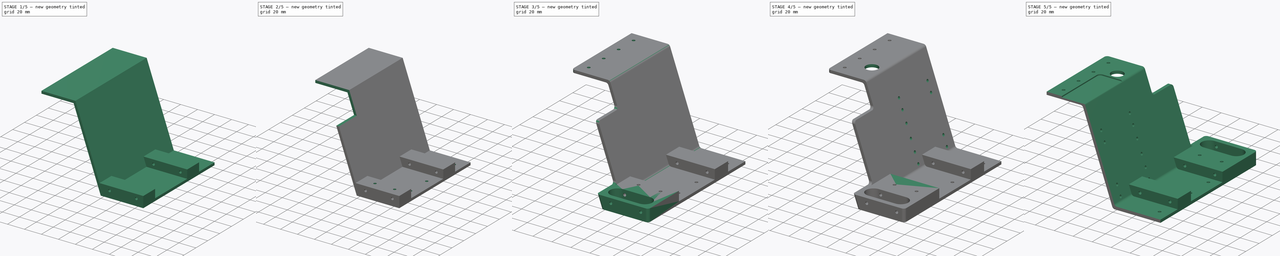
[diagram: build sequence overview — one tinted view per stage of 5, left to right]
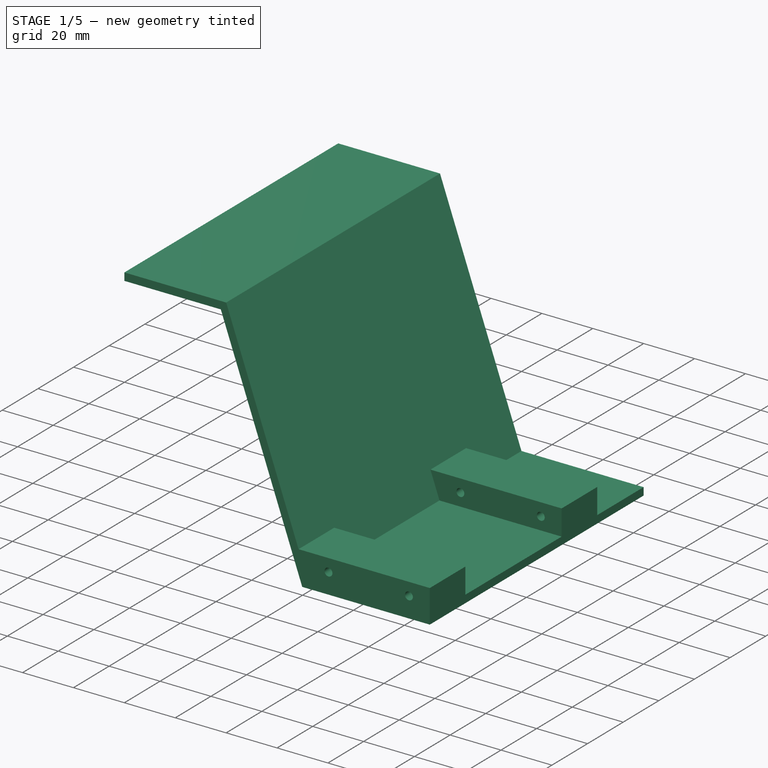
[diagram: stage 1 of 5 — iso view after this stage's code; geometry added in this stage tinted green]
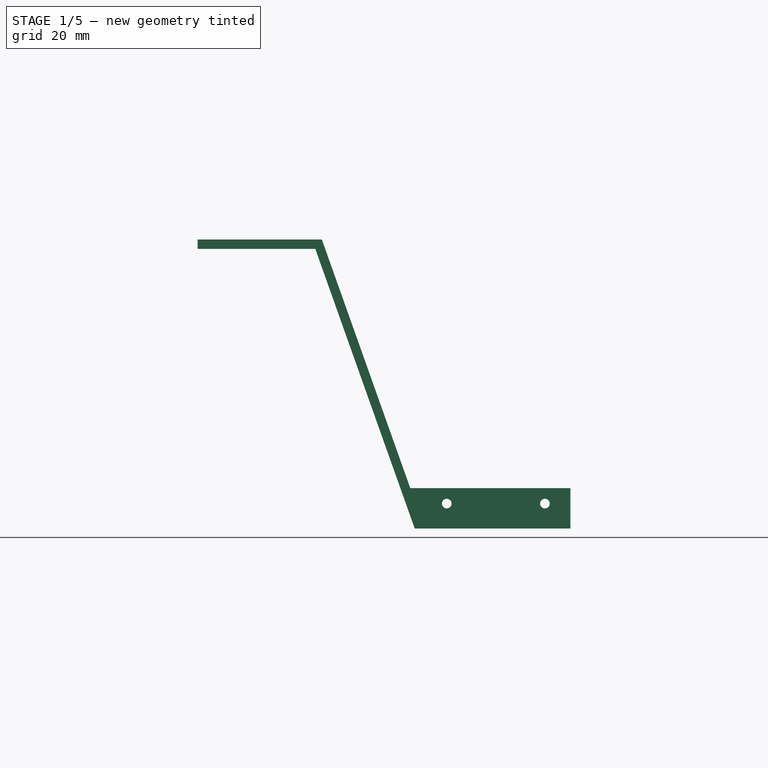
[diagram: stage 1 of 5 — front view after this stage's code; geometry added in this stage tinted green]
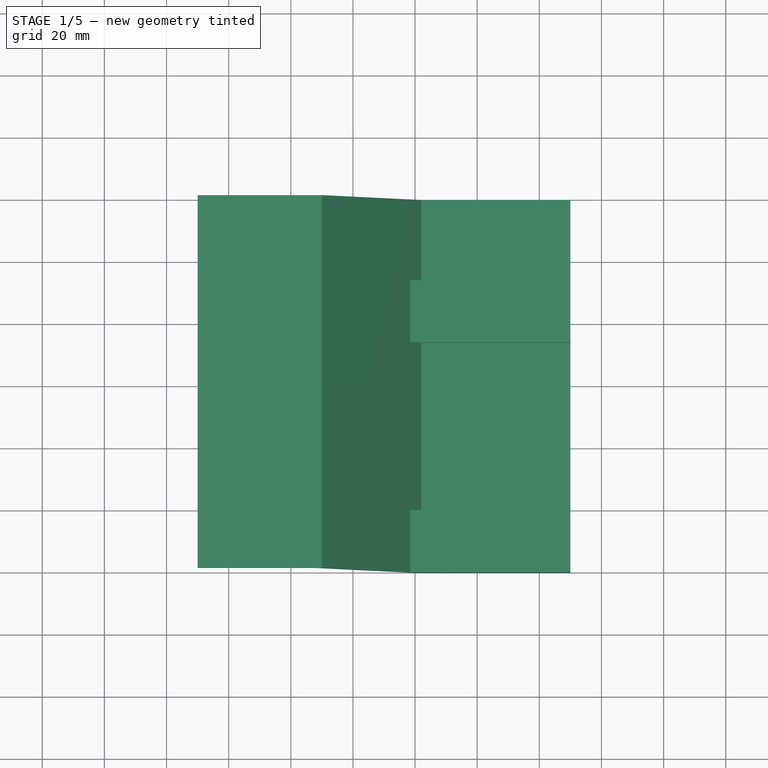
[diagram: stage 1 of 5 — top view after this stage's code; geometry added in this stage tinted green]
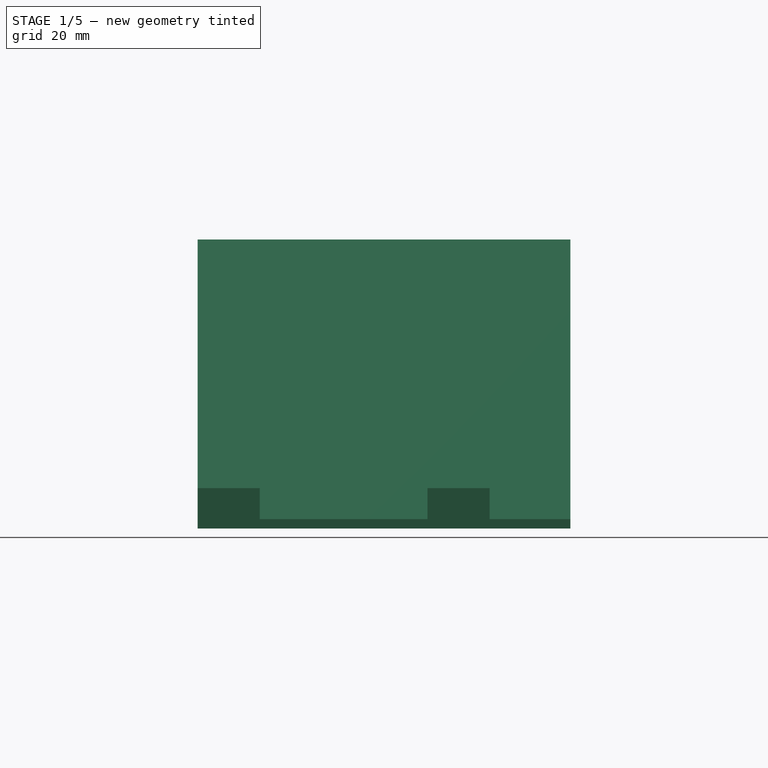
[diagram: stage 1 of 5 — right view after this stage's code; geometry added in this stage tinted green]
FCSTD DOCUMENT  (FreeCAD 1.1R44874 (Git))
Label: carter-v2
License: All rights reserved
LicenseURL: https://en.wikipedia.org/wiki/All_rights_reserved
objects: Sketcher::SketchObject×11, PartDesign::Pocket×8, PartDesign::Pad×4, PartDesign::Fillet×2, PartDesign::LinearPattern×1, PartDesign::Plane×1, PartDesign::Body×1, Part::Mirroring×1, App::Point×1
note: 69 computed .brp shape members not serialized (recipe doc carries the construction recipe); baked Part::Feature solids carry a one-line shape summary decoded from their .brp

FEATURE [Sketcher::SketchObject] Sketch001
  ArcFitTolerance = 1e-06
  AttachmentSupport = -> [XZ_Plane001]
  ExternalTypes = [0]
  FullyConstrained = true
  MakeInternals = false
  MapMode = 5
  Placement = pos=(0,0,0) rot=(1,0,0;1.5708rad)
  _ExternalGeoVersion = 0
  sketch-geometry (12):
    g0: LineSegment [constr] StartX=50 StartY=-45 StartZ=0 EndX=-50 EndY=-45 EndZ=0
    g1: LineSegment [constr] StartX=-50 StartY=-45 StartZ=0 EndX=-50 EndY=45 EndZ=0
    g2: LineSegment StartX=-70 StartY=45 StartZ=0 EndX=-32.1173 EndY=45 EndZ=0
    g3: LineSegment StartX=-32.1173 StartY=45 StartZ=0 EndX=-0.117321 EndY=-45 EndZ=0
    g4: LineSegment StartX=-0.117321 StartY=-45 StartZ=0 EndX=50 EndY=-45 EndZ=0
    g5: LineSegment [constr] StartX=-50 StartY=45 StartZ=0 EndX=-70 EndY=45 EndZ=0
    g6: LineSegment StartX=-70 StartY=45 StartZ=0 EndX=-70 EndY=48 EndZ=0
    g7: LineSegment StartX=-70 StartY=48 StartZ=0 EndX=-30 EndY=48 EndZ=0
    g8: LineSegment StartX=-30 StartY=48 StartZ=0 EndX=2 EndY=-42 EndZ=0
    g9: LineSegment StartX=2 StartY=-42 StartZ=0 EndX=50 EndY=-42 EndZ=0
    g10: LineSegment StartX=50 StartY=-42 StartZ=0 EndX=50 EndY=-45 EndZ=0
    g11: LineSegment [constr] StartX=-16.1173 StartY=2e-15 StartZ=0 EndX=-13.2907 EndY=1.00503 EndZ=0
  constraints (33):
    c: Coincident(g1,g0)
    c: Symmetric(g1,g0,g-1)
    c: Symmetric(g0,g0,g-2)
    c: Distance(g0,g0) = 100
    c: Distance(g1,g1) = 90
    c: Horizontal(g2)
    c: Coincident(g3,g2)
    c: Coincident(g4,g3)
    c: Horizontal(g4)
    c: Coincident(g5,g1)
    c: Horizontal(g5)
    c: Distance(g5,g5) = 20
    c: Coincident(g2,g5)
    c: Coincident(g4,g0)
    c: Coincident(g2,g6)
    c: Coincident(g6,g7)
    c: Horizontal(g7)
    c: Coincident(g7,g8)
    c: Coincident(g8,g9)
    c: Horizontal(g9)
    c: Coincident(g9,g10)
    c: Coincident(g10,g0)
    c: Vertical(g10)
    c: Vertical(g6)
    c: Parallel(g3,g8)
    c: Symmetric(g3,g2,g11)
    c: PointOnObject(g11,g3)
    c: PointOnObject(g11,g8)
    c: Equal(g6,g11)
    c: Equal(g11,g10)
    c: Distance(g10,g10) = 3
    c: Distance(g7,g7) = 40
    c: Distance(g9,g9) = 48
FEATURE [PartDesign::Pad] Pad
  Direction = (0,-1,2e-16)
  Length = 120
  Length2 = 10
  Placement = pos=(0,0,0) rot=(1,0,0;1.5708rad)
  Profile = -> Sketch001
  ReferenceAxis = -> Sketch001 [N_Axis]
  Refine = true
  SideType = 0
  Suppressed = false
  Type = 0
  Type2 = 0
FEATURE [Sketcher::SketchObject] Sketch
  ArcFitTolerance = 1e-06
  AttachmentSupport = -> [Pad]
  ExternalGeometry = -> [Pad]
  ExternalTypes = [0]
  FullyConstrained = true
  MakeInternals = false
  MapMode = 5
  Placement = pos=(0,-120,0) rot=(1,0,0;1.5708rad)
  _ExternalGeoVersion = 0
  sketch-geometry (9):
    g0: LineSegment StartX=50 StartY=-45 StartZ=0 EndX=50 EndY=-32 EndZ=0
    g1: LineSegment StartX=50 StartY=-32 StartZ=0 EndX=-4.73954 EndY=-32 EndZ=0
    g2: LineSegment StartX=-4.73954 StartY=-32 StartZ=0 EndX=-0.117321 EndY=-45 EndZ=0
    g3: LineSegment StartX=-0.117321 StartY=-45 StartZ=0 EndX=50 EndY=-45 EndZ=0
    g4: LineSegment [constr] StartX=26 StartY=-42 StartZ=0 EndX=26 EndY=-32 EndZ=0
    g5: LineSegment [constr] StartX=10.2 StartY=-37 StartZ=0 EndX=41.8 EndY=-37 EndZ=0
    g6: Circle CenterX=10.2 CenterY=-37 CenterZ=0 NormalX=0 NormalY=0 NormalZ=1 AngleXU=0 Radius=1.55
    g7: Circle CenterX=41.8 CenterY=-37 CenterZ=0 NormalX=0 NormalY=0 NormalZ=1 AngleXU=0 Radius=1.55
    g8: Circle [constr] CenterX=41.8 CenterY=-37 CenterZ=0 NormalX=0 NormalY=0 NormalZ=1 AngleXU=0 Radius=5
  constraints (23):
    c: Coincident(g0,g1)
    c: Coincident(g1,g2)
    c: Coincident(g2,g3)
    c: Coincident(g3,g0)
    c: Vertical(g0)
    c: Horizontal(g1)
    c: Horizontal(g3)
    c: Coincident(g0,g-4)
    c: PointOnObject(g2,g-3)
    c: PointOnObject(g1,g-3)
    c: Symmetric(g-5,g-5,g4)
    c: PointOnObject(g4,g1)
    c: Symmetric(g4,g4,g5)
    c: Coincident(g6,g5)
    c: Coincident(g7,g5)
    c: Equal(g6,g7)
    c: Diameter(g6) = 3.1
    c: Distance(g5,g5) = 31.6
    c: Symmetric(g5,g5,g4)
    c: PointOnObject(g4,g-5)
    c: Coincident(g8,g5)
    c: Diameter(g8) = 10
    c: Tangent(g1,g8)
FEATURE [PartDesign::Pad] Pad001
  BaseFeature = -> Pad
  Direction = (0,-1,2e-16)
  Length = 20
  Length2 = 20
  Placement = pos=(0,0,0) rot=(1,0,0;1.5708rad)
  Profile = -> Sketch
  ReferenceAxis = -> Sketch [N_Axis]
  Refine = true
  Reversed = true
  SideType = 0
  Suppressed = false
  Type = 0
  Type2 = 0
FEATURE [PartDesign::LinearPattern] LinearPattern
  BaseFeature = -> Pad001
  Direction = -> Y_Axis001
  Length = 74
  Length2 = 100
  Mode = 0
  Mode2 = 0
  Occurrences = 2
  Occurrences2 = 1
  Offset = 74
  Offset2 = 10
  Originals = -> [Pad001]
  Placement = pos=(0,0,0) rot=(1,0,0;1.5708rad)
  Refine = true
  Reversed2 = false
  SpacingPattern = [0]
  SpacingPattern2 = [0]
  Spacings = [-1]
  Suppressed = false
  TransformMode = 0
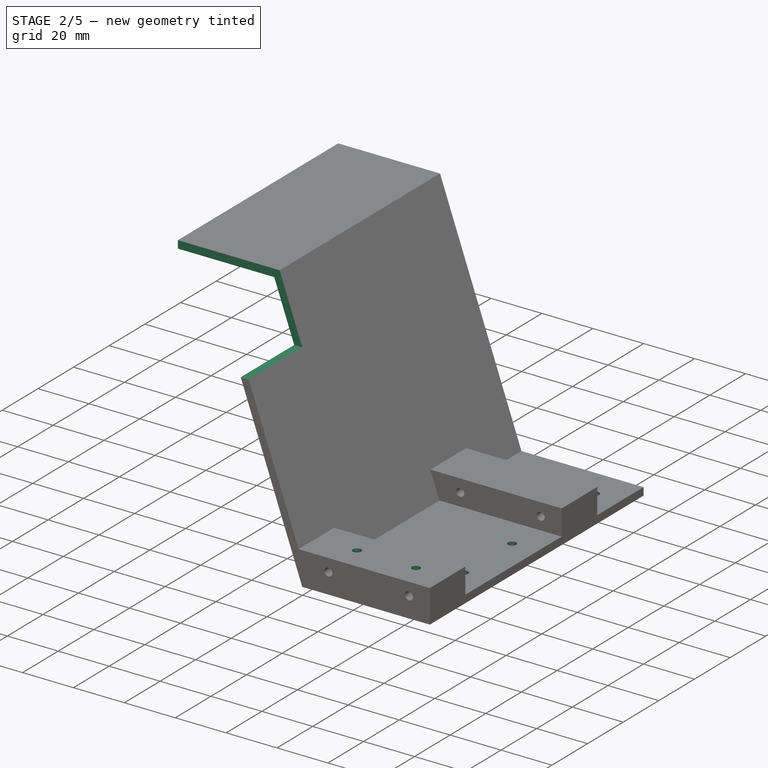
[diagram: stage 2 of 5 — iso view after this stage's code; geometry added in this stage tinted green]
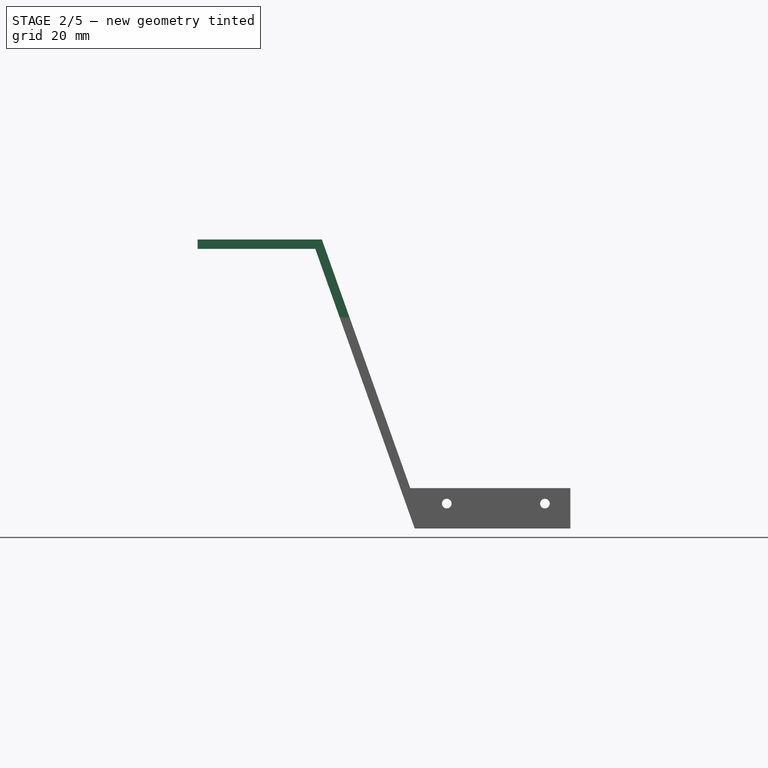
[diagram: stage 2 of 5 — front view after this stage's code; geometry added in this stage tinted green]
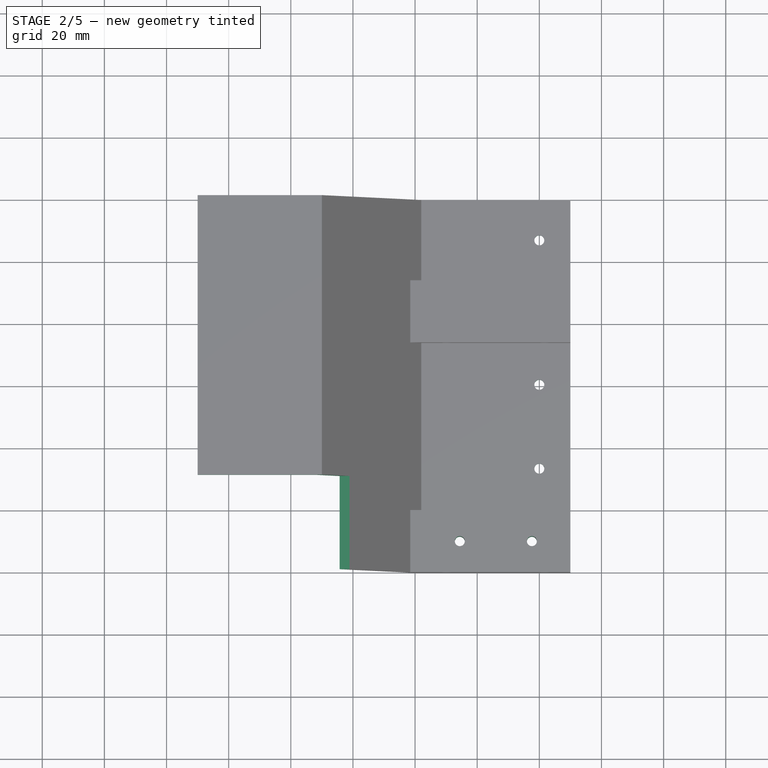
[diagram: stage 2 of 5 — top view after this stage's code; geometry added in this stage tinted green]
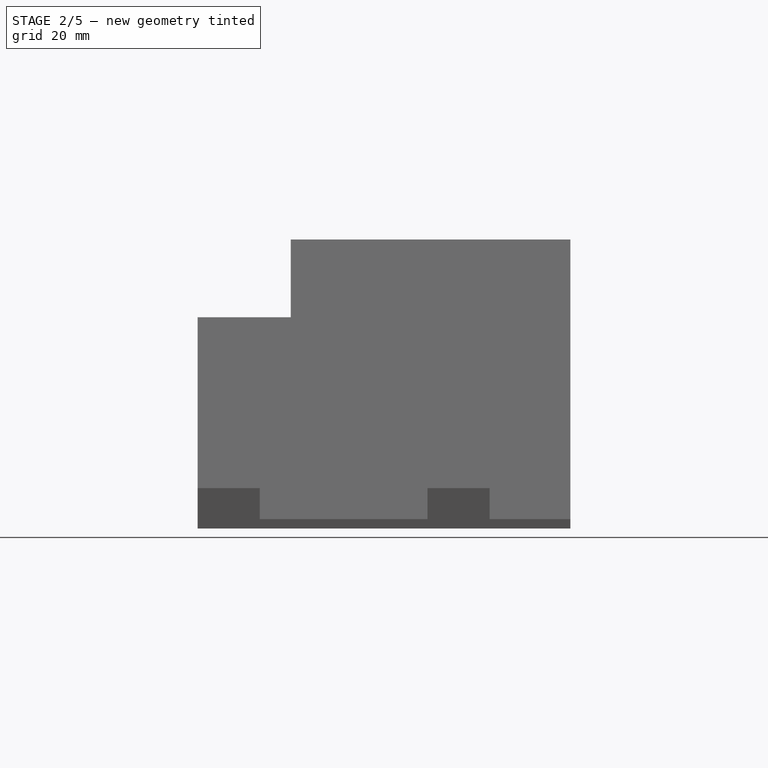
[diagram: stage 2 of 5 — right view after this stage's code; geometry added in this stage tinted green]
FEATURE [Sketcher::SketchObject] Sketch002
  ArcFitTolerance = 1e-06
  AttachmentSupport = -> [LinearPattern]
  ExternalGeometry = -> [LinearPattern]
  ExternalTypes = [0]
  FullyConstrained = true
  MakeInternals = false
  MapMode = 5
  Placement = pos=(-70,0,0) rot=(0.707107,0,-0.707107;3.14159rad)
  _ExternalGeoVersion = 0
  sketch-geometry (4):
    g0: LineSegment StartX=-48 StartY=120 StartZ=0 EndX=-48 EndY=90 EndZ=0
    g1: LineSegment StartX=-48 StartY=90 StartZ=0 EndX=-23 EndY=90 EndZ=0
    g2: LineSegment StartX=-23 StartY=90 StartZ=0 EndX=-23 EndY=120 EndZ=0
    g3: LineSegment StartX=-23 StartY=120 StartZ=0 EndX=-48 EndY=120 EndZ=0
  constraints (11):
    c: Coincident(g0,g1)
    c: Coincident(g1,g2)
    c: Coincident(g2,g3)
    c: Coincident(g3,g0)
    c: Vertical(g0)
    c: Vertical(g2)
    c: Horizontal(g1)
    c: Horizontal(g3)
    c: Coincident(g0,g-3)
    c: Distance(g3,g3) = 25
    c: Distance(g0,g0) = 30
FEATURE [PartDesign::Pocket] Pocket
  BaseFeature = -> LinearPattern
  Direction = (1,0,2e-16)
  Length = 5
  Length2 = 5
  Placement = pos=(0,0,0) rot=(1,0,0;1.5708rad)
  Profile = -> Sketch002
  ReferenceAxis = -> Sketch002 [N_Axis]
  Refine = true
  SideType = 0
  Suppressed = false
  Type = 1
  Type2 = 0
FEATURE [Sketcher::SketchObject] Sketch003
  ArcFitTolerance = 1e-06
  AttachmentSupport = -> [Pocket]
  ExternalGeometry = -> [Pocket]
  ExternalTypes = [0]
  FullyConstrained = true
  MakeInternals = false
  MapMode = 5
  Placement = pos=(0,-7.1e-15,-32) rot=(0,0,1;3.14159rad)
  _ExternalGeoVersion = 0
  sketch-geometry (8):
    g0: Circle CenterX=-37.6 CenterY=110 CenterZ=0 NormalX=0 NormalY=0 NormalZ=1 AngleXU=0 Radius=1.6
    g1: Circle CenterX=-14.4 CenterY=110 CenterZ=0 NormalX=0 NormalY=0 NormalZ=1 AngleXU=0 Radius=1.6
    g2: LineSegment [constr] StartX=-2 StartY=100 StartZ=0 EndX=-2 EndY=120 EndZ=0
    g3: LineSegment [constr] StartX=-2 StartY=120 StartZ=0 EndX=-50 EndY=120 EndZ=0
    g4: LineSegment [constr] StartX=-50 StartY=120 StartZ=0 EndX=-50 EndY=100 EndZ=0
    g5: LineSegment [constr] StartX=-50 StartY=100 StartZ=0 EndX=-2 EndY=100 EndZ=0
    g6: LineSegment [constr] StartX=-14.4 StartY=110 StartZ=0 EndX=-37.6 EndY=110 EndZ=0
    g7: LineSegment [constr] StartX=-26 StartY=120 StartZ=0 EndX=-26 EndY=100 EndZ=0
  constraints (21):
    c: Diameter(g0) = 3.2
    c: Equal(g0,g1)
    c: Distance(g1,g0) = 20
    c: Coincident(g2,g3)
    c: Coincident(g3,g4)
    c: Coincident(g4,g5)
    c: Coincident(g5,g2)
    c: Vertical(g2)
    c: Vertical(g4)
    c: Horizontal(g3)
    c: Horizontal(g5)
    c: Coincident(g2,g-4)
    c: Coincident(g3,g-3)
    c: Coincident(g6,g1)
    c: Coincident(g6,g0)
    c: Horizontal(g6)
    c: PointOnObject(g7,g5)
    c: PointOnObject(g7,g3)
    c: Symmetric(g7,g7,g6)
    c: Symmetric(g0,g1,g7)
    c: Symmetric(g2,g3,g7)
FEATURE [PartDesign::Pocket] Pocket001
  BaseFeature = -> Pocket
  Direction = (0,0,-1)
  Length = 5
  Length2 = 5
  Placement = pos=(0,0,0) rot=(1,0,0;1.5708rad)
  Profile = -> Sketch003
  ReferenceAxis = -> Sketch003 [N_Axis]
  Refine = true
  SideType = 0
  Suppressed = false
  Type = 1
  Type2 = 0
FEATURE [Sketcher::SketchObject] Sketch004
  ArcFitTolerance = 1e-06
  AttachmentSupport = -> [Pocket001]
  ExternalGeometry = -> [Pocket001]
  ExternalTypes = [0]
  FullyConstrained = true
  MakeInternals = false
  MapMode = 5
  Placement = pos=(0,-7.1e-15,-32) rot=(0,0,1;3.14159rad)
  _ExternalGeoVersion = 0
  sketch-geometry (11):
    g0: LineSegment [constr] StartX=-50 StartY=120 StartZ=0 EndX=-50 EndY=0 EndZ=0
    g1: LineSegment [constr] StartX=-50 StartY=0 StartZ=0 EndX=-30 EndY=0 EndZ=0
    g2: LineSegment [constr] StartX=-30 StartY=0 StartZ=0 EndX=-30 EndY=120 EndZ=0
    g3: LineSegment [constr] StartX=-30 StartY=120 StartZ=0 EndX=-50 EndY=120 EndZ=0
    g4: LineSegment [constr] StartX=-40 StartY=120 StartZ=0 EndX=-40 EndY=0 EndZ=0
    g5: Circle CenterX=-40 CenterY=13 CenterZ=0 NormalX=0 NormalY=0 NormalZ=1 AngleXU=0 Radius=1.6
    g6: LineSegment [constr] StartX=-50 StartY=73 StartZ=0 EndX=0 EndY=73 EndZ=0
    g7: Circle CenterX=-40 CenterY=86.5 CenterZ=0 NormalX=0 NormalY=0 NormalZ=1 AngleXU=0 Radius=1.6
    g8: Circle CenterX=-40 CenterY=59.5 CenterZ=0 NormalX=0 NormalY=0 NormalZ=1 AngleXU=0 Radius=1.6
    g9: LineSegment [constr] StartX=-50 StartY=73 StartZ=0 EndX=-30 EndY=46 EndZ=0
    g10: LineSegment [constr] StartX=-50 StartY=0 StartZ=0 EndX=-30 EndY=26 EndZ=0
  constraints (31):
    c: Coincident(g0,g1)
    c: Coincident(g1,g2)
    c: Coincident(g2,g3)
    c: Coincident(g3,g0)
    c: Vertical(g0)
    c: Vertical(g2)
    c: Horizontal(g1)
    c: Horizontal(g3)
    c: Coincident(g0,g-3)
    c: PointOnObject(g1,g-1)
    c: Distance(g3,g3) = 20
    c: PointOnObject(g4,g3)
    c: PointOnObject(g4,g1)
    c: Symmetric(g2,g0,g4)
    c: PointOnObject(g5,g4)
    c: Equal(g5,g-4)
    c: Symmetric(g-5,g-6,g6)
    c: PointOnObject(g6,g-2)
    c: PointOnObject(g6,g0)
    c: Symmetric(g8,g7,g6)
    c: Equal(g8,g7)
    c: PointOnObject(g7,g4)
    c: Equal(g8,g5)
    c: Coincident(g9,g6)
    c: PointOnObject(g9,g-6)
    c: PointOnObject(g9,g2)
    c: PointOnObject(g8,g9)
    c: Coincident(g10,g0)
    c: PointOnObject(g10,g2)
    c: PointOnObject(g10,g-7)
    c: PointOnObject(g5,g10)
FEATURE [PartDesign::Pocket] Pocket002
  BaseFeature = -> Pocket001
  Direction = (0,0,-1)
  Length = 0
  Length2 = 5
  Placement = pos=(0,0,0) rot=(1,0,0;1.5708rad)
  Profile = -> Sketch004
  ReferenceAxis = -> Sketch004 [N_Axis]
  Refine = true
  SideType = 0
  Suppressed = false
  Type = 3
  Type2 = 0
  UpToFace = -> Pocket001 [Face6]
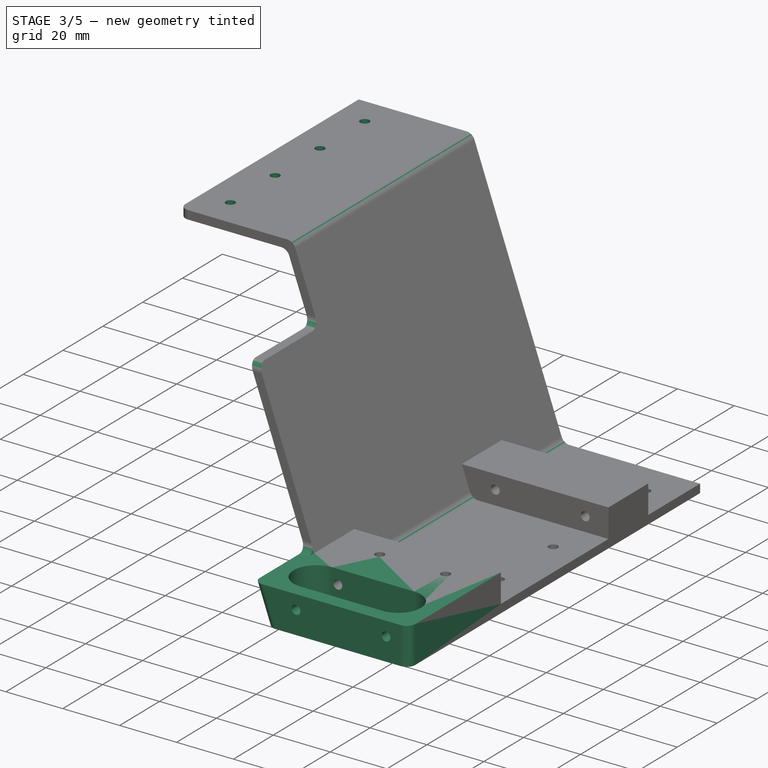
[diagram: stage 3 of 5 — iso view after this stage's code; geometry added in this stage tinted green]
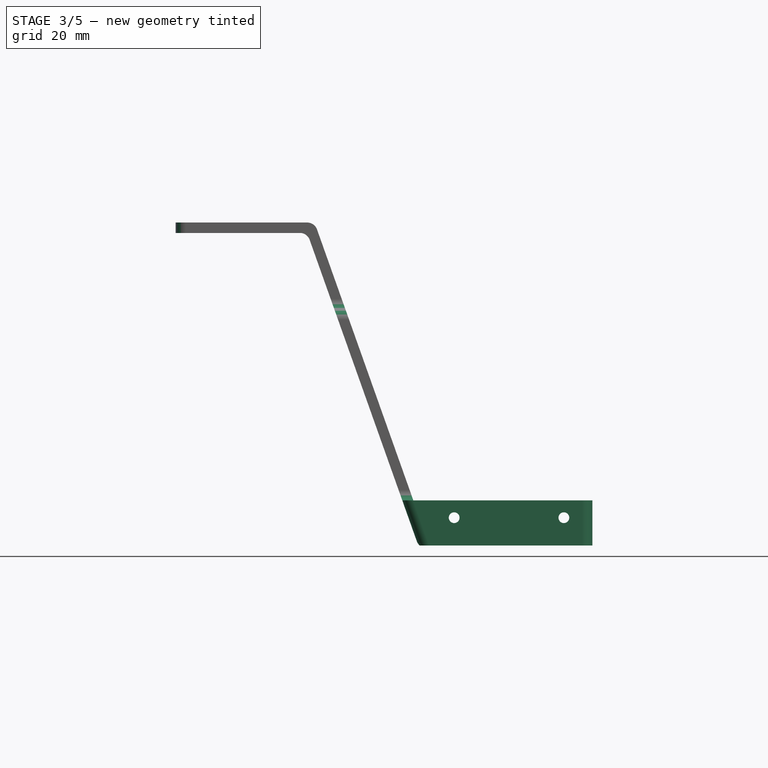
[diagram: stage 3 of 5 — front view after this stage's code; geometry added in this stage tinted green]
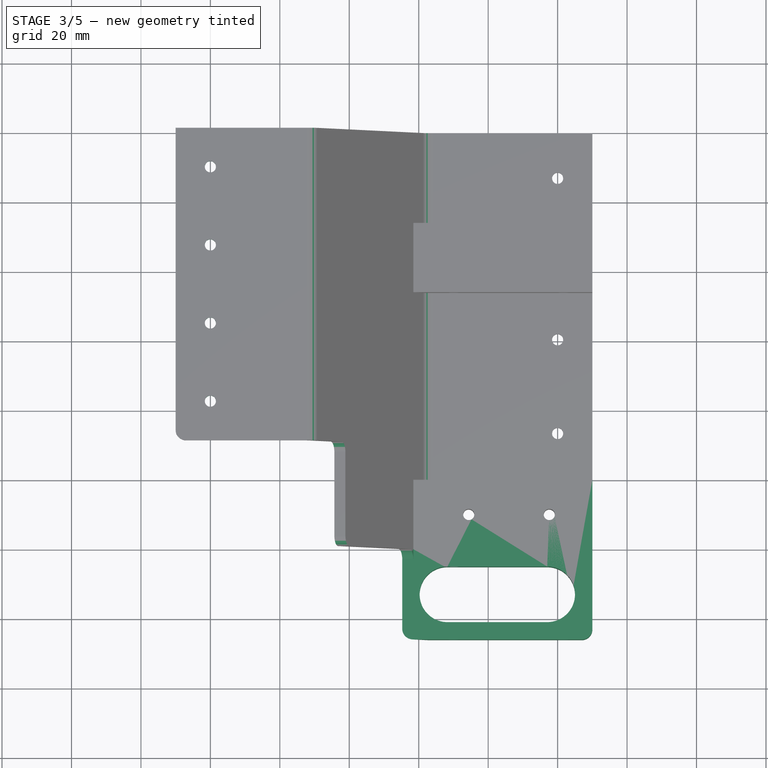
[diagram: stage 3 of 5 — top view after this stage's code; geometry added in this stage tinted green]
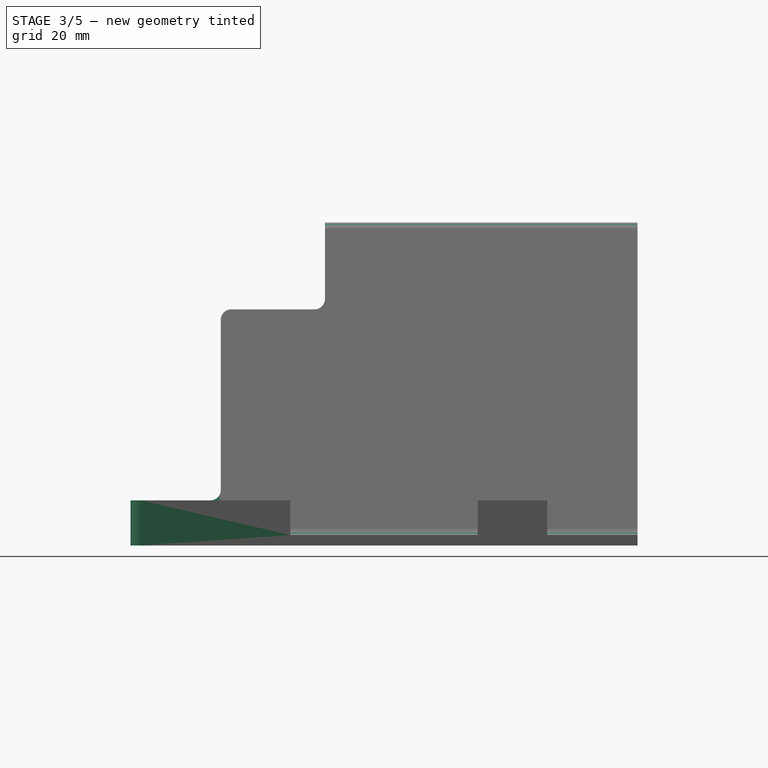
[diagram: stage 3 of 5 — right view after this stage's code; geometry added in this stage tinted green]
FEATURE [Sketcher::SketchObject] Sketch005
  ArcFitTolerance = 1e-06
  AttachmentSupport = -> [Pocket002]
  ExternalGeometry = -> [Pocket002]
  ExternalTypes = [0]
  FullyConstrained = true
  MakeInternals = false
  MapMode = 5
  Placement = pos=(0,1.07e-14,48) rot=(0,0,1;3.14159rad)
  _ExternalGeoVersion = 0
  sketch-geometry (13):
    g0: LineSegment [constr] StartX=70 StartY=90 StartZ=0 EndX=50 EndY=90 EndZ=0
    g1: LineSegment [constr] StartX=50 StartY=90 StartZ=0 EndX=50 EndY=0 EndZ=0
    g2: LineSegment [constr] StartX=50 StartY=0 StartZ=0 EndX=70 EndY=0 EndZ=0
    g3: LineSegment [constr] StartX=70 StartY=0 StartZ=0 EndX=70 EndY=90 EndZ=0
    g4: LineSegment [constr] StartX=60 StartY=90 StartZ=0 EndX=60 EndY=0 EndZ=0
    g5: Circle CenterX=60 CenterY=56.25 CenterZ=0 NormalX=0 NormalY=0 NormalZ=1 AngleXU=0 Radius=1.6
    g6: Circle CenterX=60 CenterY=33.75 CenterZ=0 NormalX=0 NormalY=0 NormalZ=1 AngleXU=0 Radius=1.6
    g7: LineSegment [constr] StartX=0 StartY=45 StartZ=0 EndX=70 EndY=45 EndZ=0
    g8: LineSegment [constr] StartX=0 StartY=67.5 StartZ=0 EndX=70 EndY=67.5 EndZ=0
    g9: LineSegment [constr] StartX=70 StartY=67.5 StartZ=0 EndX=50 EndY=45 EndZ=0
    g10: LineSegment [constr] StartX=70 StartY=90 StartZ=0 EndX=50 EndY=67.5 EndZ=0
    g11: Circle CenterX=60 CenterY=78.75 CenterZ=0 NormalX=0 NormalY=0 NormalZ=1 AngleXU=0 Radius=1.6
    g12: Circle CenterX=60 CenterY=11.25 CenterZ=0 NormalX=0 NormalY=0 NormalZ=1 AngleXU=0 Radius=1.6
  constraints (36):
    c: Coincident(g0,g1)
    c: Coincident(g1,g2)
    c: Coincident(g2,g3)
    c: Coincident(g3,g0)
    c: Horizontal(g0)
    c: Horizontal(g2)
    c: Vertical(g1)
    c: Vertical(g3)
    c: Coincident(g0,g-3)
    c: PointOnObject(g1,g-1)
    c: Distance(g2,g2) = 20
    c: Symmetric(g0,g0,g4)
    c: PointOnObject(g4,g-3)
    c: PointOnObject(g4,g2)
    c: Symmetric(g2,g0,g7)
    c: PointOnObject(g7,g3)
    c: PointOnObject(g7,g-2)
    c: Symmetric(g5,g6,g7)
    c: PointOnObject(g6,g4)
    c: Symmetric(g7,g0,g8)
    c: PointOnObject(g8,g-2)
    c: PointOnObject(g8,g3)
    c: Coincident(g9,g8)
    c: Coincident(g10,g0)
    c: PointOnObject(g9,g1)
    c: PointOnObject(g9,g7)
    c: PointOnObject(g10,g8)
    c: PointOnObject(g10,g1)
    c: PointOnObject(g5,g9)
    c: Symmetric(g12,g11,g7)
    c: Equal(g11,g12)
    c: PointOnObject(g12,g4)
    c: PointOnObject(g11,g10)
    c: Equal(g12,g6)
    c: Equal(g6,g5)
    c: Equal(g11,g-4)
FEATURE [PartDesign::Pocket] Pocket003
  BaseFeature = -> Pocket002
  Direction = (0,0,-1)
  Length = 5
  Length2 = 5
  Placement = pos=(0,0,0) rot=(1,0,0;1.5708rad)
  Profile = -> Sketch005
  ReferenceAxis = -> Sketch005 [N_Axis]
  Refine = true
  SideType = 0
  Suppressed = false
  Type = 1
  Type2 = 0
FEATURE [Sketcher::SketchObject] Sketch006
  ArcFitTolerance = 1e-06
  AttachmentSupport = -> [Pocket003]
  ExternalGeometry = -> [Pocket003]
  ExternalTypes = [0]
  FullyConstrained = true
  MakeInternals = false
  MapMode = 5
  Placement = pos=(0,-120,2.69e-14) rot=(1,0,0;1.5708rad)
  _ExternalGeoVersion = 0
  sketch-geometry (6):
    g0: LineSegment StartX=-4.73954 StartY=-32 StartZ=0 EndX=-0.117321 EndY=-45 EndZ=0
    g1: LineSegment StartX=-0.117321 StartY=-45 StartZ=0 EndX=50 EndY=-45 EndZ=0
    g2: LineSegment StartX=50 StartY=-45 StartZ=0 EndX=50 EndY=-32 EndZ=0
    g3: Circle CenterX=10.2 CenterY=-37 CenterZ=0 NormalX=0 NormalY=0 NormalZ=1 AngleXU=0 Radius=1.55
    g4: Circle CenterX=41.8 CenterY=-37 CenterZ=0 NormalX=0 NormalY=0 NormalZ=1 AngleXU=0 Radius=1.55
    g5: LineSegment StartX=-4.73954 StartY=-32 StartZ=0 EndX=50 EndY=-32 EndZ=0
  constraints (14):
    c: Coincident(g0,g1)
    c: Coincident(g1,g2)
    c: Horizontal(g1)
    c: Vertical(g2)
    c: Coincident(g3,g-8)
    c: Coincident(g4,g-9)
    c: Equal(g3,g4)
    c: Equal(g4,g-9)
    c: Coincident(g0,g-10)
    c: PointOnObject(g0,g-10)
    c: Coincident(g5,g0)
    c: Coincident(g5,g2)
    c: Horizontal(g5)
    c: Coincident(g2,g-6)
FEATURE [PartDesign::Pad] Pad002
  BaseFeature = -> Pocket003
  Direction = (0,-1,2e-16)
  Length = 26
  Length2 = 10
  Placement = pos=(0,0,0) rot=(1,0,0;1.5708rad)
  Profile = -> Sketch006
  ReferenceAxis = -> Sketch006 [N_Axis]
  Refine = true
  SideType = 0
  Suppressed = false
  Type = 0
  Type2 = 0
FEATURE [Sketcher::SketchObject] Sketch007
  ArcFitTolerance = 1e-06
  AttachmentSupport = -> [Pad002]
  ExternalGeometry = -> [Pad002]
  ExternalTypes = [0]
  FullyConstrained = true
  MakeInternals = false
  MapMode = 5
  Placement = pos=(0,-2.1e-14,-32) rot=(0,0,1;3.14159rad)
  _ExternalGeoVersion = 0
  sketch-geometry (7):
    g0: LineSegment [constr] StartX=4.73954 StartY=120 StartZ=0 EndX=-50 EndY=120 EndZ=0
    g1: ArcOfCircle CenterX=-37 CenterY=133 CenterZ=0 NormalX=0 NormalY=0 NormalZ=1 AngleXU=0 Radius=8 StartAngle=1.5708 EndAngle=4.71239
    g2: ArcOfCircle CenterX=-8.26046 CenterY=133 CenterZ=0 NormalX=0 NormalY=0 NormalZ=1 AngleXU=0 Radius=8 StartAngle=4.71239 EndAngle=7.85398
    g3: LineSegment StartX=-37 StartY=141 StartZ=0 EndX=-8.26046 EndY=141 EndZ=0
    g4: LineSegment StartX=-37 StartY=125 StartZ=0 EndX=-8.26046 EndY=125 EndZ=0
    g5: LineSegment [constr] StartX=-37 StartY=133 StartZ=0 EndX=-8.26046 EndY=133 EndZ=0
    g6: LineSegment [constr] StartX=-22.6302 StartY=146 StartZ=0 EndX=-22.6302 EndY=120 EndZ=0
  constraints (16):
    c: Coincident(g0,g-3)
    c: Symmetric(g-4,g-4,g0)
    c: Tangent(g1,g3) = 1.5708
    c: Tangent(g1,g4) = -1.5708
    c: Tangent(g2,g3) = 1.5708
    c: Tangent(g2,g4) = -1.5708
    c: Equal(g1,g2)
    c: Coincident(g5,g1)
    c: Coincident(g5,g2)
    c: Symmetric(g0,g-5,g5)
    c: Symmetric(g-5,g-5,g6)
    c: PointOnObject(g6,g-5)
    c: PointOnObject(g6,g0)
    c: Distance(g1,g-4) = 5
    c: Symmetric(g1,g2,g6)
    c: DistanceY(g2,g-5) = 5
FEATURE [PartDesign::Pocket] Pocket004
  BaseFeature = -> Pad002
  Direction = (0,0,-1)
  Length = 5
  Length2 = 5
  Placement = pos=(0,0,0) rot=(1,0,0;1.5708rad)
  Profile = -> Sketch007
  ReferenceAxis = -> Sketch007 [N_Axis]
  Refine = true
  SideType = 0
  Suppressed = false
  Type = 1
  Type2 = 0
FEATURE [PartDesign::Fillet] Fillet
  Base = -> Pocket004 [Edge17,Edge24,Edge77,Edge19,Edge70,Edge53,Edge60,Edge54,Edge65,Edge3,Edge18]
  BaseFeature = -> Pocket004
  Placement = pos=(0,0,0) rot=(1,0,0;1.5708rad)
  Radius = 3
  Refine = true
  SupportTransform = false
  Suppressed = false
  UseAllEdges = false
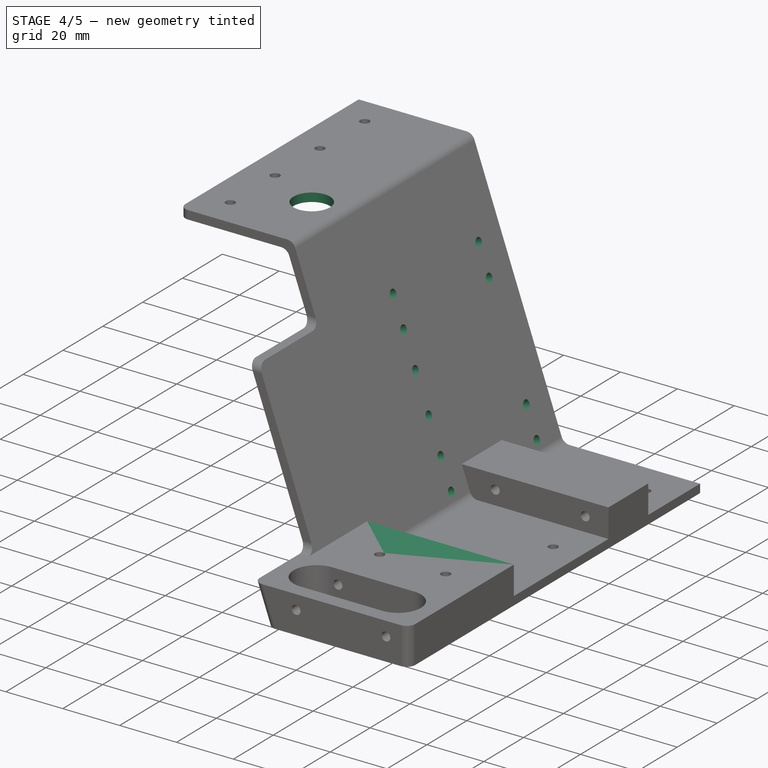
[diagram: stage 4 of 5 — iso view after this stage's code; geometry added in this stage tinted green]
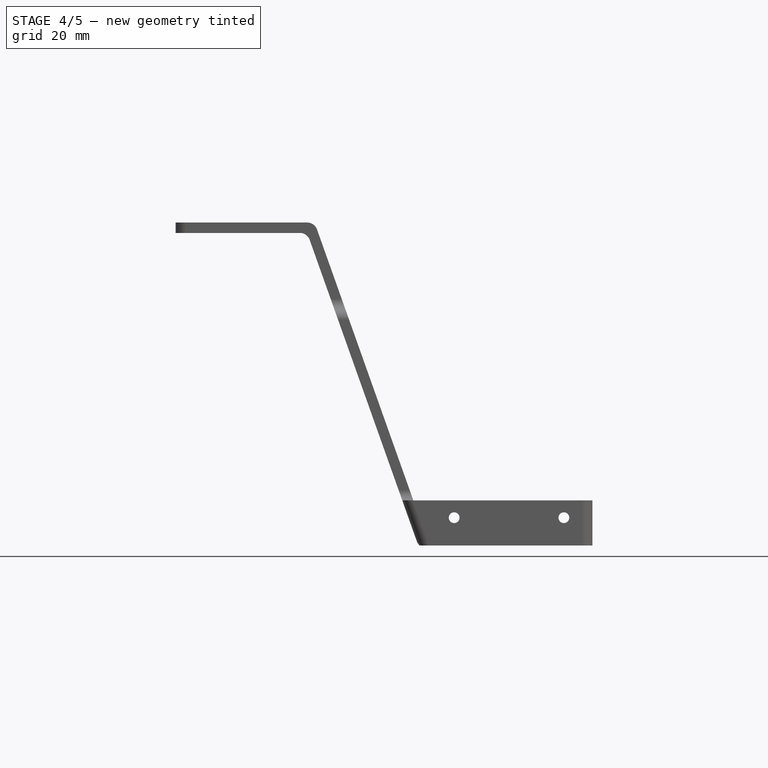
[diagram: stage 4 of 5 — front view after this stage's code; geometry added in this stage tinted green]
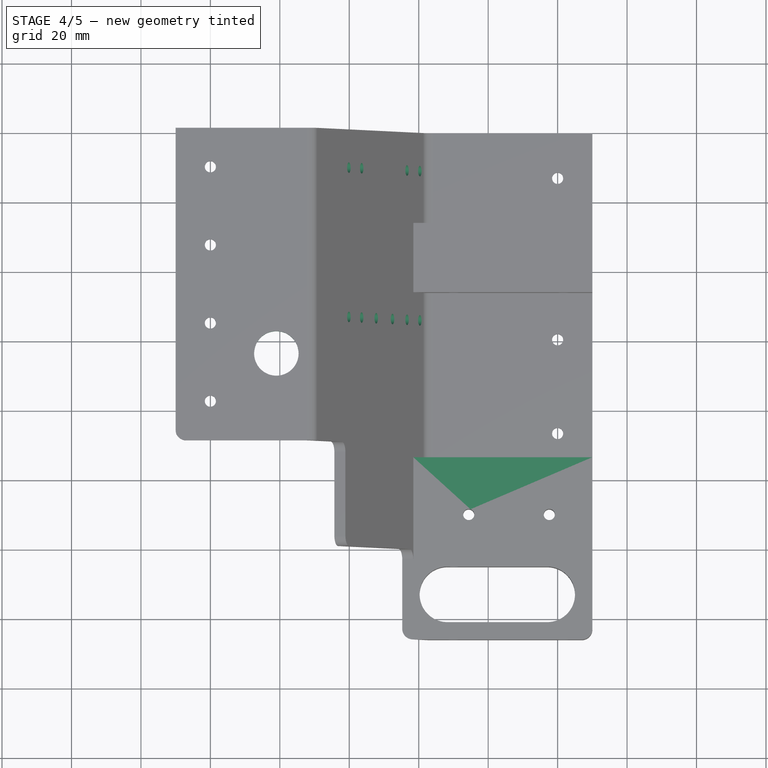
[diagram: stage 4 of 5 — top view after this stage's code; geometry added in this stage tinted green]
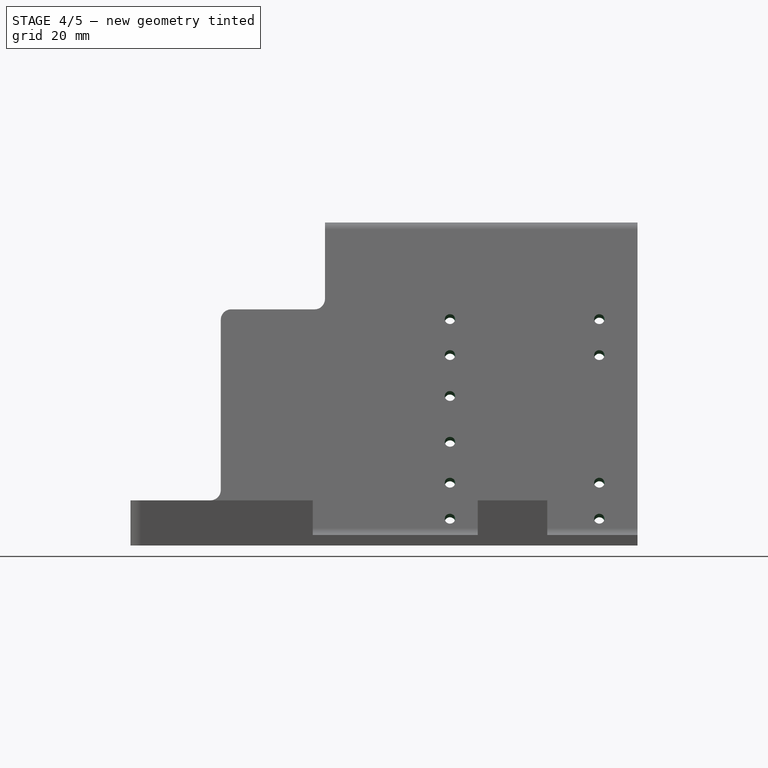
[diagram: stage 4 of 5 — right view after this stage's code; geometry added in this stage tinted green]
FEATURE [PartDesign::Plane] DatumPlane
  AttachmentSupport = -> [Fillet]
  Length = 141.128
  MapMode = 5
  Placement = pos=(0,-2e-16,0) rot=(-1,0,0;1.5708rad)
  ResizeMode = 0
  Width = 114.128
FEATURE [PartDesign::Pad] Pad003
  BaseFeature = -> Fillet
  Direction = (0,1,-1.1e-15)
  Length = 6.5
  Length2 = 10
  Placement = pos=(0,0,0) rot=(1,0,0;1.5708rad)
  Profile = -> Fillet [Face44]
  Refine = true
  SideType = 0
  Suppressed = false
  Type = 0
  Type2 = 0
FEATURE [Sketcher::SketchObject] Sketch008
  ArcFitTolerance = 1e-06
  AttachmentSupport = -> [Pad003]
  ExternalGeometry = -> [Pad003]
  ExternalTypes = [0]
  FullyConstrained = true
  MakeInternals = false
  MapMode = 5
  Placement = pos=(0,1.07e-14,48) rot=(0,0,1;3.14159rad)
  _ExternalGeoVersion = 0
  sketch-geometry (1):
    g0: Circle CenterX=41 CenterY=65 CenterZ=0 NormalX=0 NormalY=0 NormalZ=1 AngleXU=0 Radius=6.4
  constraints (3):
    c: DistanceX(g0,g-4) = 29
    c: DistanceY(g0,g-3) = 25
    c: Diameter(g0) = 12.8
FEATURE [PartDesign::Pocket] Pocket005
  BaseFeature = -> Pad003
  Direction = (0,0,-1)
  Length = 0
  Length2 = 5
  Placement = pos=(0,0,0) rot=(1,0,0;1.5708rad)
  Profile = -> Sketch008
  ReferenceAxis = -> Sketch008 [N_Axis]
  Refine = true
  SideType = 0
  Suppressed = false
  Type = 3
  Type2 = 0
  UpToFace = -> Pad003 [Face1]
FEATURE [Sketcher::SketchObject] Sketch009
  ArcFitTolerance = 1e-06
  AttachmentSupport = -> [Pocket005]
  ExternalGeometry = -> [Pocket005]
  ExternalTypes = [0]
  FullyConstrained = true
  MakeInternals = false
  MapMode = 5
  Placement = pos=(-14.3085,-1.3e-15,-5.08745) rot=(0.81701,0,-0.576624;3.14159rad)
  _ExternalGeoVersion = 0
  sketch-geometry (23):
    g0: LineSegment [constr] StartX=-30.757 StartY=54 StartZ=0 EndX=-30.757 EndY=11 EndZ=0
    g1: LineSegment [constr] StartX=-25.757 StartY=6 StartZ=0 EndX=35.243 EndY=6 EndZ=0
    g2: LineSegment [constr] StartX=40.243 StartY=11 StartZ=0 EndX=40.243 EndY=54 EndZ=0
    g3: LineSegment [constr] StartX=35.243 StartY=59 StartZ=0 EndX=-25.757 EndY=59 EndZ=0
    g4: ArcOfCircle [constr] CenterX=-25.757 CenterY=54 CenterZ=0 NormalX=0 NormalY=0 NormalZ=1 AngleXU=0 Radius=5 StartAngle=1.5708 EndAngle=3.14159
    g5: GeomPoint [constr] X=-30.757 Y=59 Z=0
    g6: ArcOfCircle [constr] CenterX=-25.757 CenterY=11 CenterZ=0 NormalX=0 NormalY=0 NormalZ=1 AngleXU=0 Radius=5 StartAngle=3.14159 EndAngle=4.71239
    g7: GeomPoint [constr] X=-30.757 Y=6 Z=0
    g8: ArcOfCircle [constr] CenterX=35.243 CenterY=11 CenterZ=0 NormalX=0 NormalY=0 NormalZ=1 AngleXU=0 Radius=5 StartAngle=4.71239 EndAngle=6.28319
    g9: GeomPoint [constr] X=40.243 Y=6 Z=0
    g10: ArcOfCircle [constr] CenterX=35.243 CenterY=54 CenterZ=0 NormalX=0 NormalY=0 NormalZ=1 AngleXU=0 Radius=5 StartAngle=1e-16 EndAngle=1.5708
    g11: GeomPoint [constr] X=40.243 Y=59 Z=0
    g12: Circle CenterX=-25.757 CenterY=54 CenterZ=0 NormalX=0 NormalY=0 NormalZ=1 AngleXU=0 Radius=1.5
    g13: Circle CenterX=35.243 CenterY=54 CenterZ=0 NormalX=0 NormalY=0 NormalZ=1 AngleXU=0 Radius=1.5
    g14: Circle CenterX=24.243 CenterY=54 CenterZ=0 NormalX=0 NormalY=0 NormalZ=1 AngleXU=0 Radius=1.5
    g15: Circle CenterX=-14.757 CenterY=54 CenterZ=0 NormalX=0 NormalY=0 NormalZ=1 AngleXU=0 Radius=1.5
    g16: Circle CenterX=-14.757 CenterY=11 CenterZ=0 NormalX=0 NormalY=0 NormalZ=1 AngleXU=0 Radius=1.5
    g17: Circle CenterX=24.243 CenterY=11 CenterZ=0 NormalX=0 NormalY=0 NormalZ=1 AngleXU=0 Radius=1.5
    g18: Circle CenterX=35.243 CenterY=11 CenterZ=0 NormalX=0 NormalY=0 NormalZ=1 AngleXU=0 Radius=1.5
    g19: Circle CenterX=-25.757 CenterY=11 CenterZ=0 NormalX=0 NormalY=0 NormalZ=1 AngleXU=0 Radius=1.5
    g20: Circle CenterX=-2.25696 CenterY=54 CenterZ=0 NormalX=0 NormalY=0 NormalZ=1 AngleXU=0 Radius=1.5
    g21: Circle CenterX=11.743 CenterY=54 CenterZ=0 NormalX=0 NormalY=0 NormalZ=1 AngleXU=0 Radius=1.5
    g22: LineSegment [constr] StartX=4.74304 StartY=59 StartZ=0 EndX=4.74304 EndY=6 EndZ=0
  constraints (54):
    c: Vertical(g0)
    c: Vertical(g2)
    c: Horizontal(g1)
    c: Horizontal(g3)
    c: PointOnObject(g5,g3)
    c: PointOnObject(g5,g0)
    c: Tangent(g3,g4) = -1.5708
    c: Tangent(g0,g4) = -1.5708
    c: PointOnObject(g7,g1)
    c: PointOnObject(g7,g0)
    c: Tangent(g1,g6) = -1.5708
    c: Tangent(g0,g6) = -1.5708
    c: PointOnObject(g9,g2)
    c: PointOnObject(g9,g1)
    c: Tangent(g2,g8) = -1.5708
    c: Tangent(g1,g8) = -1.5708
    c: PointOnObject(g11,g3)
    c: PointOnObject(g11,g2)
    c: Tangent(g3,g10) = -1.5708
    c: Tangent(g2,g10) = -1.5708
    c: Equal(g4,g10)
    c: Equal(g10,g6)
    c: Equal(g6,g8)
    c: Radius(g6) = 5
    c: Distance(g6,g4) = 43
    c: Distance(g6,g8) = 61
    c: PointOnObject(g2,g-3)
    c: DistanceY(g-3,g1) = 6
    c: Coincident(g12,g4)
    c: Coincident(g13,g10)
    c: Coincident(g18,g8)
    c: Coincident(g19,g6)
    c: Symmetric(g10,g4,g22)
    c: PointOnObject(g22,g3)
    c: PointOnObject(g22,g1)
    c: Symmetric(g20,g21,g22)
    c: Symmetric(g14,g15,g22)
    c: Symmetric(g16,g17,g22)
    c: Vertical(g15,g16)
    c: Horizontal(g15,g20)
    c: Horizontal(g20,g4)
    c: Horizontal(g16,g6)
    c: Equal(g19,g16)
    c: Equal(g16,g17)
    c: Equal(g17,g18)
    c: Equal(g18,g13)
    c: Equal(g13,g14)
    c: Equal(g14,g21)
    c: Equal(g21,g20)
    c: Equal(g20,g15)
    c: Equal(g15,g12)
    c: DistanceX(g4,g15) = 11
    c: Diameter(g13) = 3
    c: Distance(g15,g20) = 12.5
FEATURE [PartDesign::Pocket] Pocket006
  BaseFeature = -> Pocket005
  Direction = (0.942215,0,0.33501)
  Length = 5
  Length2 = 5
  Placement = pos=(0,0,0) rot=(1,0,0;1.5708rad)
  Profile = -> Sketch009
  ReferenceAxis = -> Sketch009 [N_Axis]
  Refine = true
  SideType = 0
  Suppressed = false
  Type = 0
  Type2 = 0
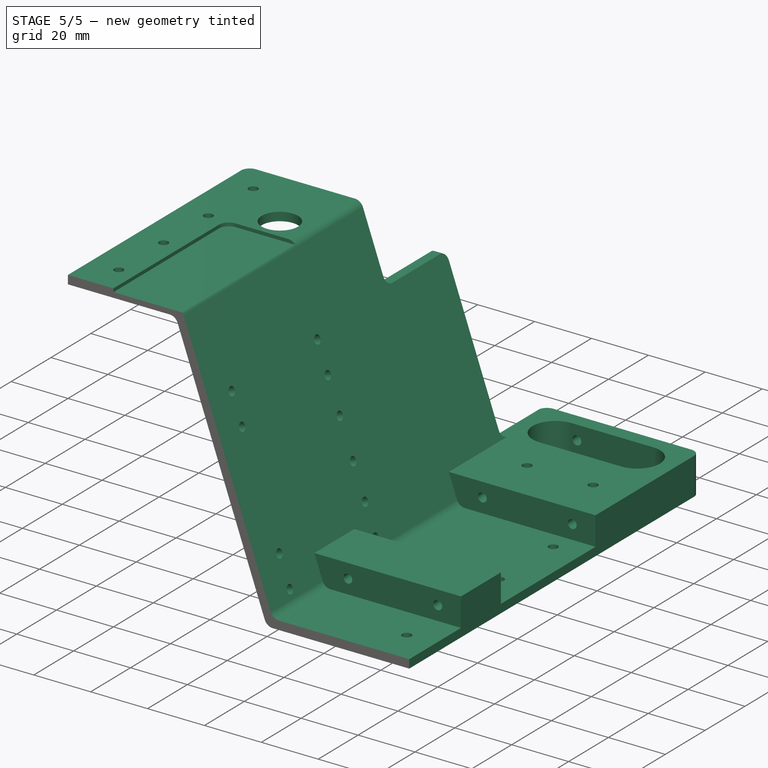
[diagram: stage 5 of 5 — iso view after this stage's code; geometry added in this stage tinted green]
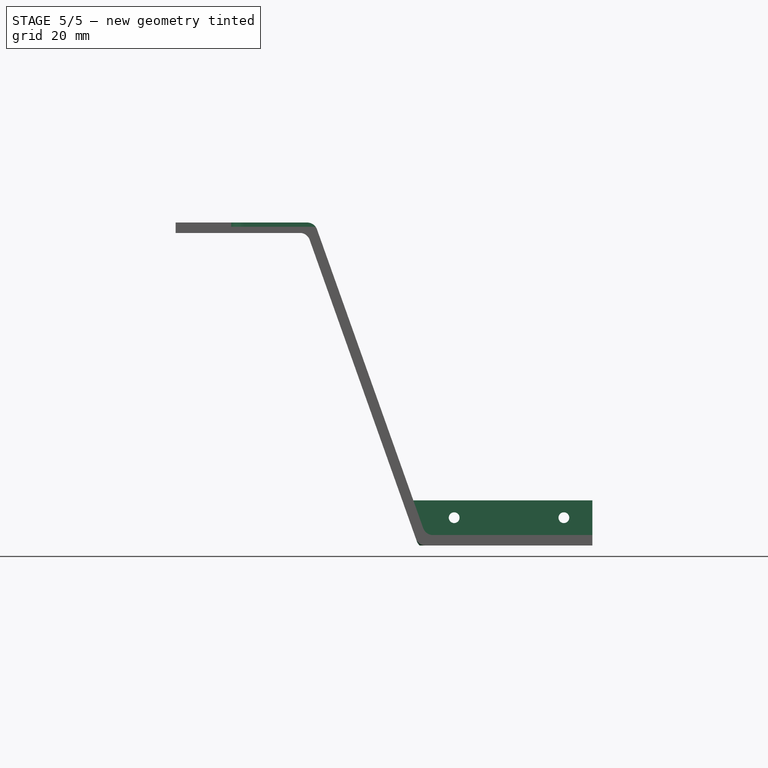
[diagram: stage 5 of 5 — front view after this stage's code; geometry added in this stage tinted green]
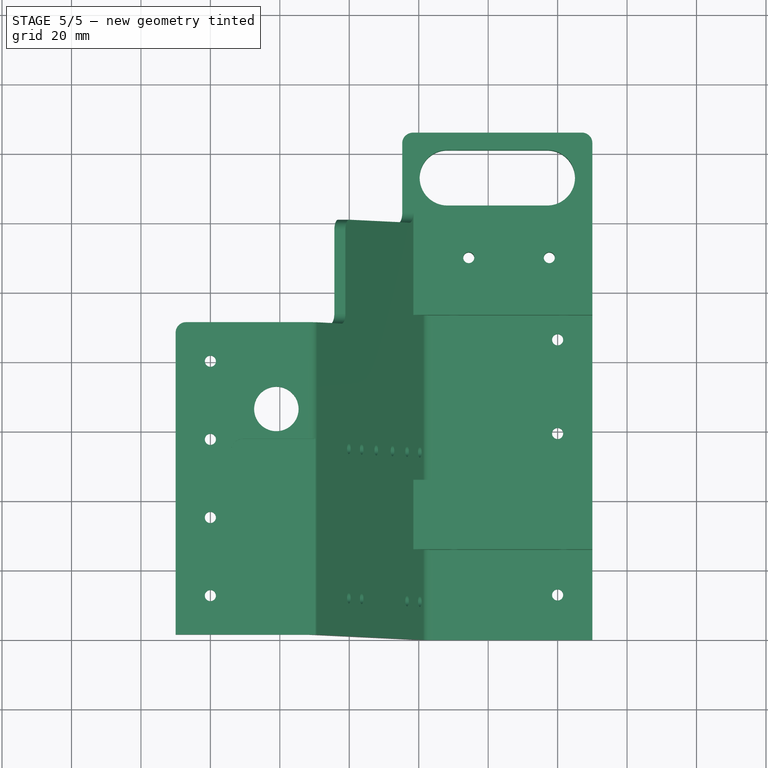
[diagram: stage 5 of 5 — top view after this stage's code; geometry added in this stage tinted green]
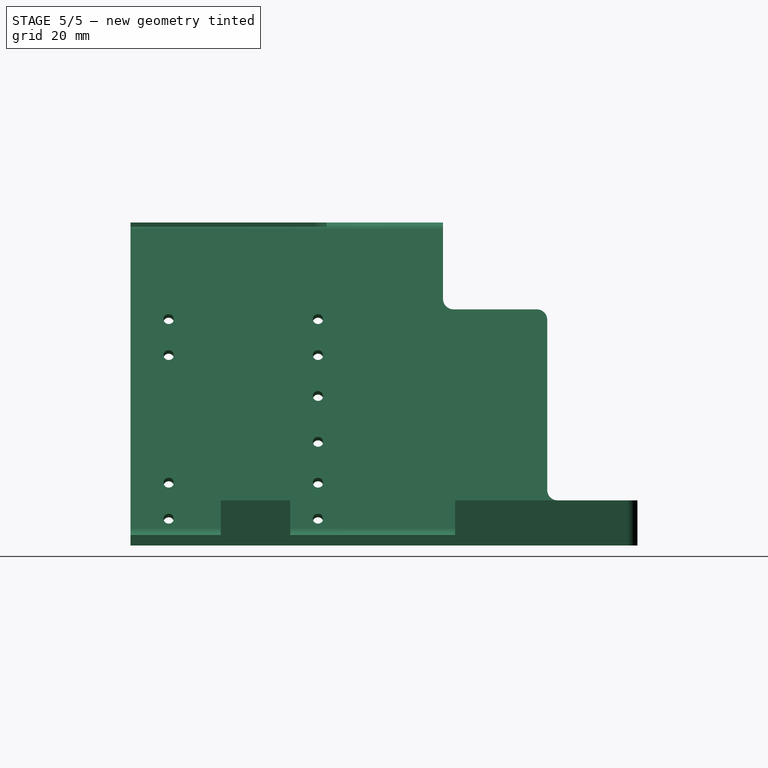
[diagram: stage 5 of 5 — right view after this stage's code; geometry added in this stage tinted green]
FEATURE [Sketcher::SketchObject] Sketch010
  ArcFitTolerance = 1e-06
  AttachmentSupport = -> [Pocket006]
  ExternalGeometry = -> [Pocket006]
  ExternalTypes = [0]
  FullyConstrained = true
  MakeInternals = false
  MapMode = 5
  Placement = pos=(0,1.07e-14,48) rot=(0,0,1;3.14159rad)
  _ExternalGeoVersion = 0
  sketch-geometry (6):
    g0: Circle [constr] CenterX=60 CenterY=11.25 CenterZ=0 NormalX=0 NormalY=0 NormalZ=1 AngleXU=0 Radius=6
    g1: LineSegment StartX=54 StartY=56.45 StartZ=0 EndX=28.6 EndY=56.45 EndZ=0
    g2: LineSegment StartX=28.6 StartY=56.45 StartZ=0 EndX=28.6 EndY=-56.45 EndZ=0
    g3: LineSegment StartX=28.6 StartY=-56.45 StartZ=0 EndX=54 EndY=-56.45 EndZ=0
    g4: LineSegment StartX=54 StartY=-56.45 StartZ=0 EndX=54 EndY=56.45 EndZ=0
    g5: LineSegment [constr] StartX=28.6 StartY=1.8e-15 StartZ=0 EndX=54 EndY=0 EndZ=0
  constraints (17):
    c: Coincident(g0,g-4)
    c: Diameter(g0) = 12
    c: Coincident(g1,g2)
    c: Coincident(g2,g3)
    c: Coincident(g3,g4)
    c: Coincident(g4,g1)
    c: Horizontal(g1)
    c: Horizontal(g3)
    c: Vertical(g2)
    c: Vertical(g4)
    c: Tangent(g4,g0)
    c: Distance(g1,g1) = 25.4
    c: Symmetric(g2,g1,g5)
    c: PointOnObject(g5,g4)
    c: PointOnObject(g5,g2)
    c: PointOnObject(g5,g-1)
    c: DistanceY(g2,g2) = 112.9
FEATURE [PartDesign::Pocket] Pocket007
  BaseFeature = -> Pocket006
  Direction = (0,0,-1)
  Length = 1.2
  Length2 = 5
  Placement = pos=(0,0,0) rot=(1,0,0;1.5708rad)
  Profile = -> Sketch010
  ReferenceAxis = -> Sketch010 [N_Axis]
  Refine = true
  SideType = 0
  Suppressed = false
  Type = 0
  Type2 = 0
FEATURE [PartDesign::Fillet] Fillet001
  Base = -> Pocket007 [Edge123]
  BaseFeature = -> Pocket007
  Placement = pos=(0,0,0) rot=(1,0,0;1.5708rad)
  Radius = 3.5
  Refine = true
  SupportTransform = false
  Suppressed = false
  UseAllEdges = false
FEATURE [PartDesign::Body] Body001  label="Corpo-01"
  AllowCompound = false
  Group = -> [Sketch001,Pad,Sketch,Pad001,LinearPattern,Sketch002,Pocket,Sketch003,Pocket001,Sketch004,Pocket002,Sketch005,Pocket003,Sketch006,Pad002,Sketch007,Pocket004,Fillet,DatumPlane,Pad003,Sketch008,Pocket005,Sketch009,Pocket006,Sketch010,Pocket007,Fillet001]
  Origin = -> Origin001
  Tip = -> Fillet001
FEATURE [Part::Mirroring] Part__Mirroring  label="Corpo-01 (Mirror #1)"
  Base = (0,-2e-16,0)
  MirrorPlane = -> DatumPlane
  Normal = (0,1,2e-16)
  Source = -> Body001
FEATURE [App::Point] Origin  label="Origem"
  Role = Origin
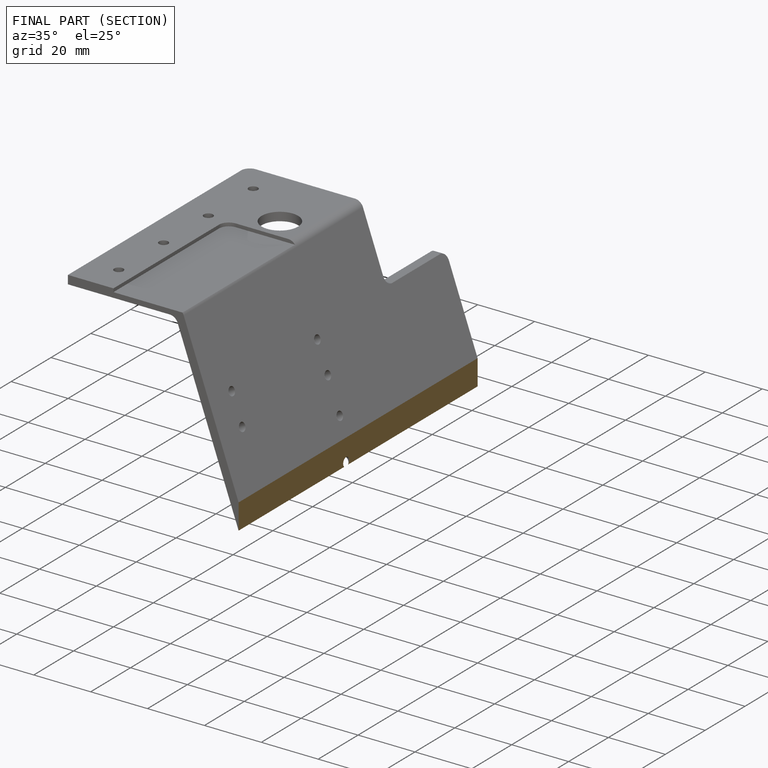
[diagram: finished part — half-section view (interior)]
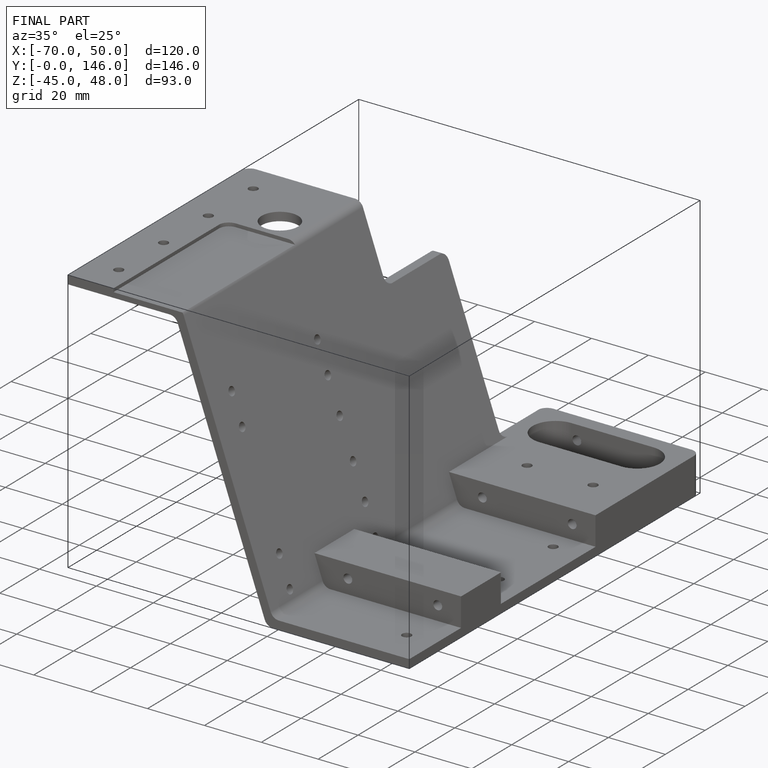
[diagram: finished part — iso view with bounding-box wireframe]
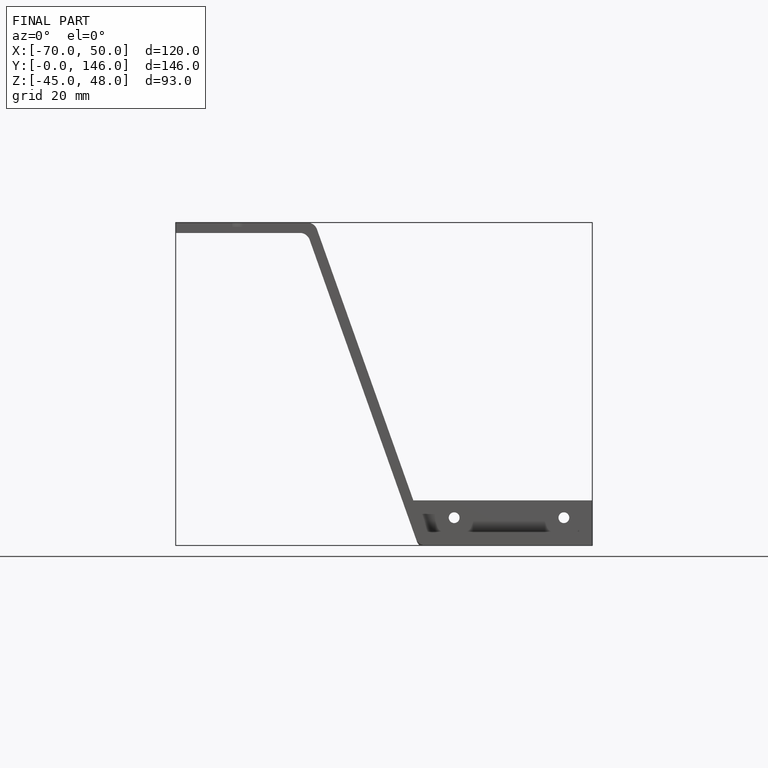
[diagram: finished part — front view with bounding-box wireframe]
